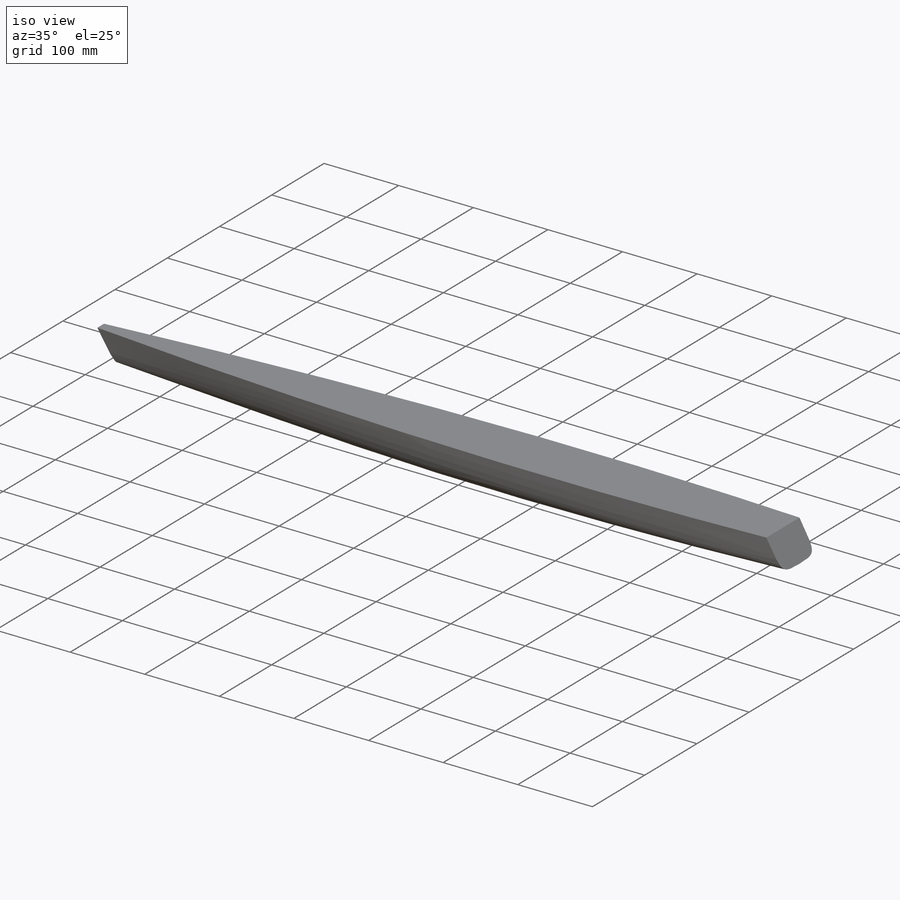
[diagram: iso view]
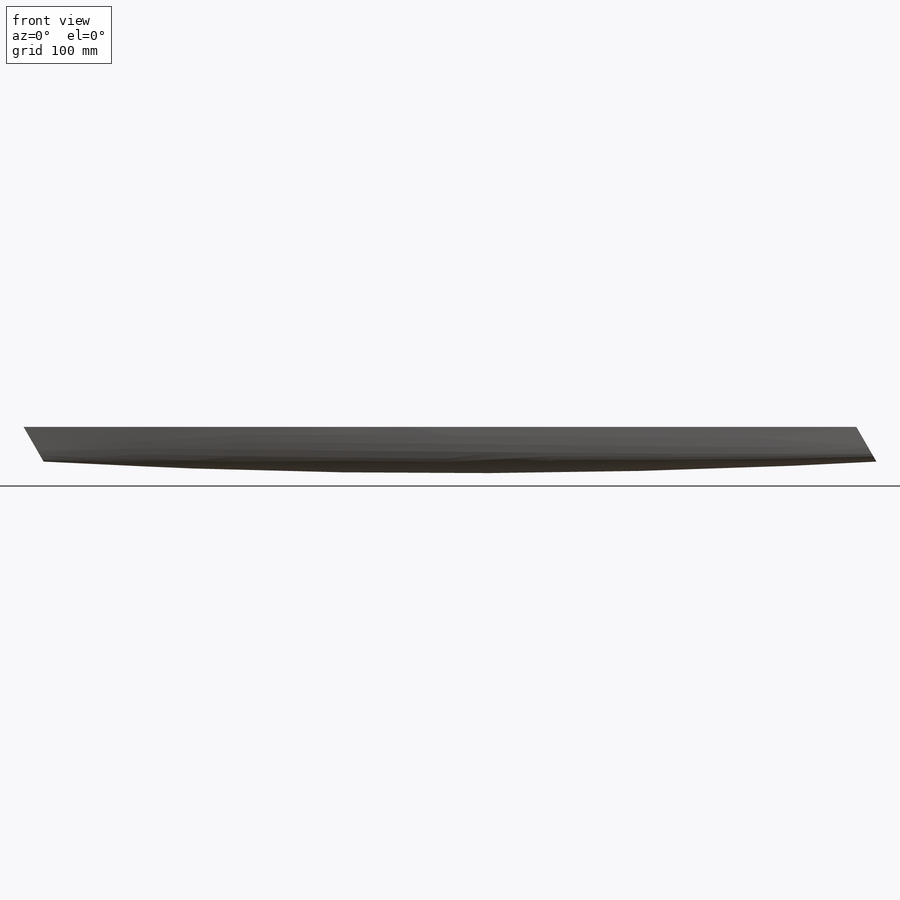
[diagram: front view]
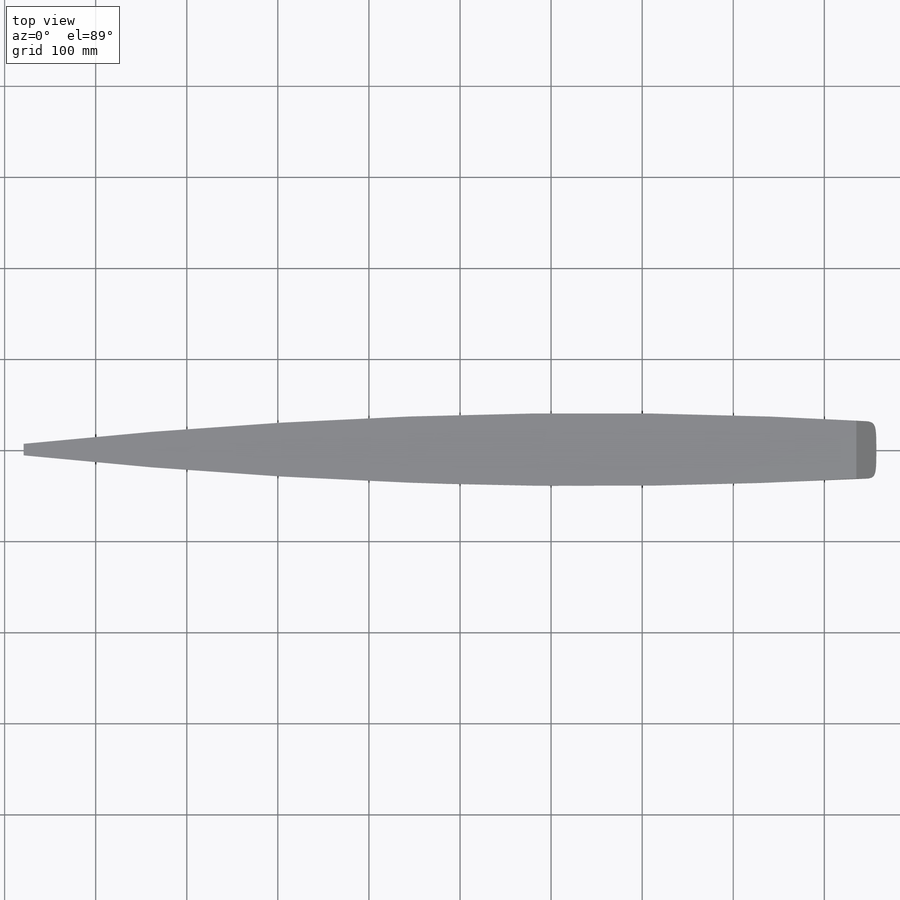
[diagram: top view]
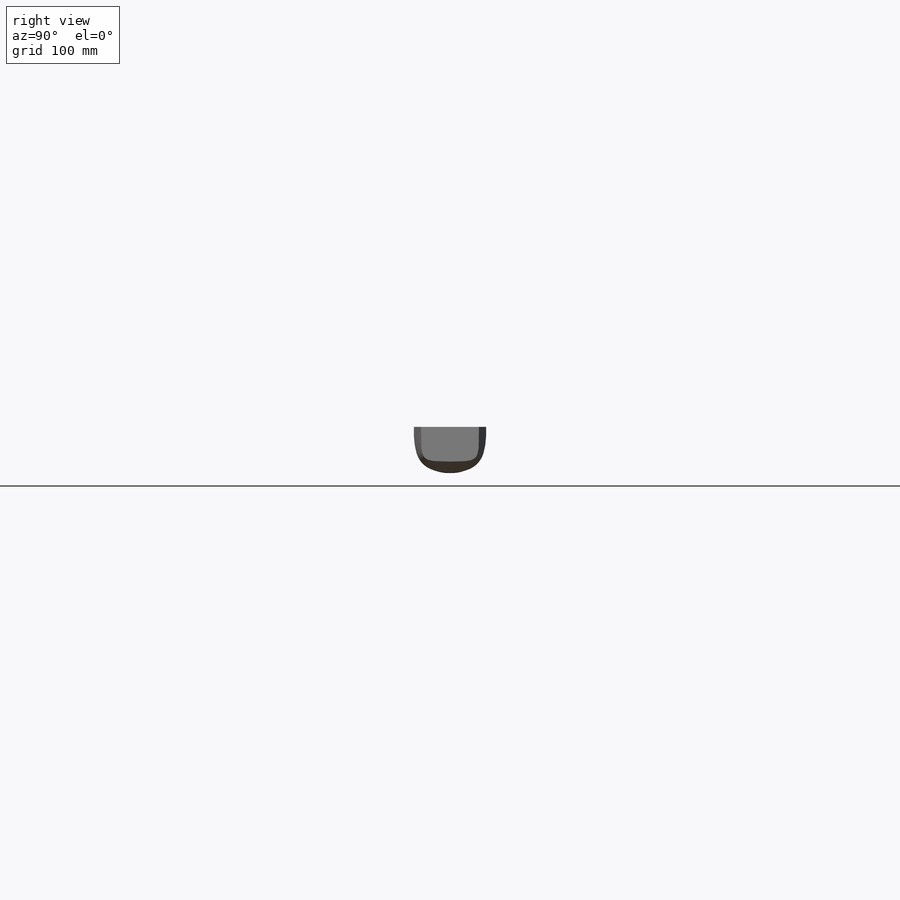
[diagram: right view]
SOLIDWORKS PART (.sldprt)
format: sldprt  version: not decoded by parser v0  size: 261,120 bytes
history: native  units: mm
features: sketch x18, plane x4, mirror x4, material x1 (+11 scaffold rows collapsed)
feature tree (38):
  scaffold x11  (default folders/planes/origin — collapsed)
  material  "Material <not specified>"
  sketch  "Sketch1"  dims[c1.D1=914.4mm c1.D2=12.7mm c1.D3=~38.499666mm c2.D3=120.0deg c2.D4=38.1mm]
  sketch  "3DSketch3"  dims[c1.D1=~79.044732mm c2.D1=60.0deg c2.D2=38.1mm]
  plane  "Plane1"
  plane  "Plane2"
  sketch  "Sketch4"  dims[D3=101.6mm D4=76.2mm D1=50.8mm D2=38.1mm]
  sketch  "Sketch5"  dims[D2=12.7mm D3=76.2mm D1=6.35mm]
  sketch  "Sketch6"  dims[D2=127.0mm D3=101.6mm D1=31.75mm]
  sketch  "Sketch7"
  sketch  "Sketch22"
  sketch  "Sketch23"
  sketch  "Surface-Plane4"
  sketch  "Sketch24"
  sketch  "Surface-Plane5"
  plane  "Plane4"
  sketch  "Sketch25"
  sketch  "Surface-Plane6"
  mirror  "Mirror2"
  mirror  "Surface-Trim2"
  mirror  "Surface-Trim3"
  mirror  "Surface-Trim4"
  sketch  "Sketch21"
  sketch  "Sketch15"
  sketch  "Sketch16"
  sketch  "Sketch17"
  plane  "Plane3"
  sketch  "Sketch19"
decode coverage: 5 of 22 modeling features carry decoded parameters
note: ~ marks probable driven/reference dimensions
note: suppression state not decoded; provenance and decode notes live in map.json
